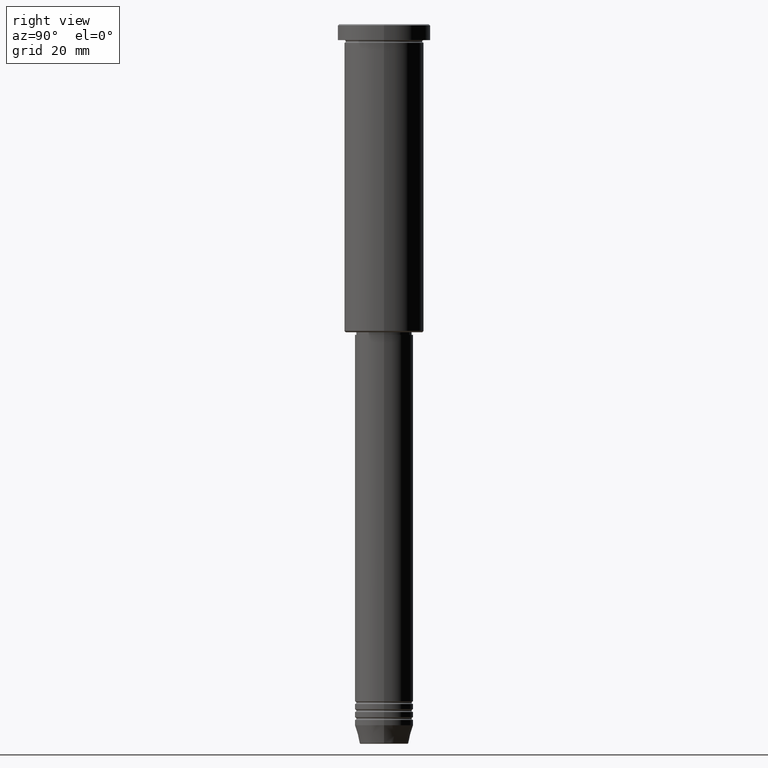
[diagram: clean part render]
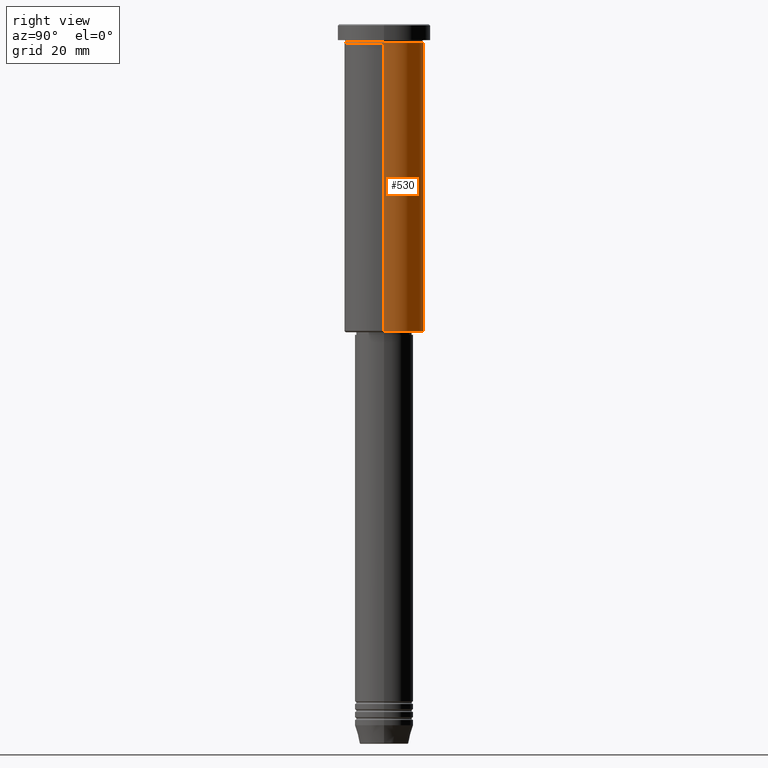
[diagram: same view with one face highlighted and labeled with its STEP entity id]
A machine part, right view. The second image highlights one B-rep face of the part: STEP entity #530.
In plain terms, the highlighted cylindrical surface (partial cylindrical patch) has radius 15 mm, axis along (-0, -0, 1).
Its self-contained STEP definition (entity closure, byte-faithful):
#23 = VECTOR ( 'NONE', #1132, 1000.000000000000000 ) ;
#26 = EDGE_CURVE ( 'NONE', #639, #1170, #681, .T. ) ;
#51 = LINE ( 'NONE', #499, #23 ) ;
#58 = VECTOR ( 'NONE', #595, 1000.000000000000000 ) ;
#91 = DIRECTION ( 'NONE',  ( -0.000000000000000000, -0.000000000000000000, 1.000000000000000000 ) ) ;
#110 = ORIENTED_EDGE ( 'NONE', *, *, #26, .F. ) ;
#173 = CARTESIAN_POINT ( 'NONE',  ( 0.000000000000000000, 0.000000000000000000, -115.5000000000000853 ) ) ;
#215 = AXIS2_PLACEMENT_3D ( 'NONE', #173, #91, #375 ) ;
#272 = CIRCLE ( 'NONE', #326, 15.00000000000000000 ) ;
#280 = EDGE_CURVE ( 'NONE', #639, #832, #360, .T. ) ;
#326 = AXIS2_PLACEMENT_3D ( 'NONE', #593, #1139, #963 ) ;
#339 = DIRECTION ( 'NONE',  ( 1.000000000000000000, 0.000000000000000000, 0.000000000000000000 ) ) ;
#360 = CIRCLE ( 'NONE', #215, 15.00000000000000000 ) ;
#375 = DIRECTION ( 'NONE',  ( -1.000000000000000000, 0.000000000000000000, 0.000000000000000000 ) ) ;
#412 = CARTESIAN_POINT ( 'NONE',  ( 15.00000000000000000, 0.000000000000000000, -6.999999999999995559 ) ) ;
#469 = EDGE_CURVE ( 'NONE', #1170, #887, #272, .T. ) ;
#499 = CARTESIAN_POINT ( 'NONE',  ( -15.00000000000000000, 1.836970198721029589E-15, 0.000000000000000000 ) ) ;
#518 = CARTESIAN_POINT ( 'NONE',  ( 15.00000000000000000, 0.000000000000000000, 0.000000000000000000 ) ) ;
#530 = ADVANCED_FACE ( 'NONE', ( #680 ), #1057, .T. ) ;
#593 = CARTESIAN_POINT ( 'NONE',  ( 0.000000000000000000, 0.000000000000000000, -6.999999999999995559 ) ) ;
#595 = DIRECTION ( 'NONE',  ( -0.000000000000000000, -0.000000000000000000, 1.000000000000000000 ) ) ;
#616 = ORIENTED_EDGE ( 'NONE', *, *, #280, .T. ) ;
#621 = EDGE_LOOP ( 'NONE', ( #616, #882, #1155, #110 ) ) ;
#639 = VERTEX_POINT ( 'NONE', #886 ) ;
#646 = CARTESIAN_POINT ( 'NONE',  ( -15.00000000000000000, 1.836970198721029589E-15, -6.999999999999995559 ) ) ;
#680 = FACE_OUTER_BOUND ( 'NONE', #621, .T. ) ;
#681 = LINE ( 'NONE', #518, #58 ) ;
#759 = AXIS2_PLACEMENT_3D ( 'NONE', #1160, #791, #339 ) ;
#791 = DIRECTION ( 'NONE',  ( -0.000000000000000000, -0.000000000000000000, 1.000000000000000000 ) ) ;
#832 = VERTEX_POINT ( 'NONE', #1121 ) ;
#882 = ORIENTED_EDGE ( 'NONE', *, *, #933, .T. ) ;
#886 = CARTESIAN_POINT ( 'NONE',  ( 15.00000000000000000, 0.000000000000000000, -115.5000000000000853 ) ) ;
#887 = VERTEX_POINT ( 'NONE', #646 ) ;
#933 = EDGE_CURVE ( 'NONE', #832, #887, #51, .T. ) ;
#963 = DIRECTION ( 'NONE',  ( 1.000000000000000000, 0.000000000000000000, 0.000000000000000000 ) ) ;
#1057 = CYLINDRICAL_SURFACE ( 'NONE', #759, 15.00000000000000000 ) ;
#1121 = CARTESIAN_POINT ( 'NONE',  ( -15.00000000000000000, 1.836970198721029589E-15, -115.5000000000000853 ) ) ;
#1132 = DIRECTION ( 'NONE',  ( -0.000000000000000000, -0.000000000000000000, 1.000000000000000000 ) ) ;
#1139 = DIRECTION ( 'NONE',  ( -0.000000000000000000, -0.000000000000000000, 1.000000000000000000 ) ) ;
#1155 = ORIENTED_EDGE ( 'NONE', *, *, #469, .F. ) ;
#1160 = CARTESIAN_POINT ( 'NONE',  ( 0.000000000000000000, 0.000000000000000000, 0.000000000000000000 ) ) ;
#1170 = VERTEX_POINT ( 'NONE', #412 ) ;